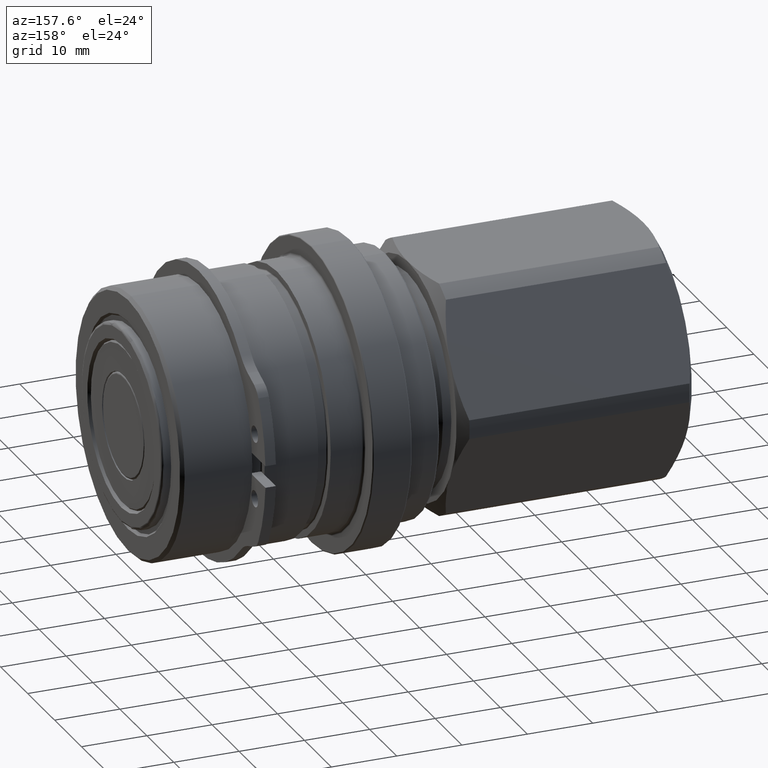
[diagram: clean part render]
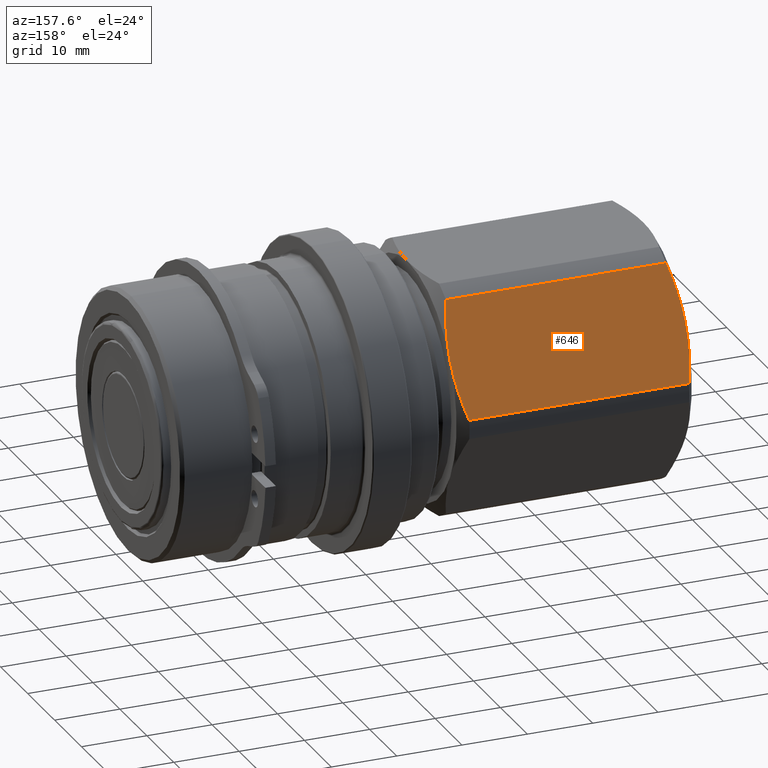
[diagram: same view with one face highlighted and labeled with its STEP entity id]
A machine part, auxiliary view. The second image highlights one B-rep face of the part: STEP entity #646.
In plain terms, the highlighted planar face has unit normal (0, 0.866, 0.5).
Its self-contained STEP definition (entity closure, byte-faithful):
#178 = CARTESIAN_POINT ( 'NONE',  ( -26.59999999999999800, 20.78460969082652100, 1.291650828109181700E-014 ) ) ;
#252 = DIRECTION ( 'NONE',  ( 0.0000000000000000000, 0.8660254037844388200, 0.4999999999999997800 ) ) ;
#273 = DIRECTION ( 'NONE',  ( -0.0000000000000000000, -0.4999999999999997800, 0.8660254037844388200 ) ) ;
#295 = PLANE ( 'NONE',  #1906 ) ;
#589 = EDGE_LOOP ( 'NONE', ( #2584, #2561, #2621, #2573, #2559, #2619 ) ) ;
#646 = ADVANCED_FACE ( 'NONE', ( #3223 ), #295, .T. ) ;
#755 = VERTEX_POINT ( 'NONE', #4355 ) ;
#818 = VERTEX_POINT ( 'NONE', #4028 ) ;
#830 = VERTEX_POINT ( 'NONE', #3957 ) ;
#890 = VERTEX_POINT ( 'NONE', #4327 ) ;
#892 = VERTEX_POINT ( 'NONE', #4323 ) ;
#916 = VERTEX_POINT ( 'NONE', #3974 ) ;
#1438 = CARTESIAN_POINT ( 'NONE',  ( 9.400000000000003900, 15.58845726811989400, 9.000000000000003600 ) ) ;
#1466 = CARTESIAN_POINT ( 'NONE',  ( 9.400000000000003900, 14.85226974635560300, 10.27511419159397100 ) ) ;
#1552 = CARTESIAN_POINT ( 'NONE',  ( 8.606667460683764800, 11.94752373592943000, 15.30628186473510200 ) ) ;
#1554 = CARTESIAN_POINT ( 'NONE',  ( 8.245299461620765800, 11.22955832457921900, 16.54983443527076000 ) ) ;
#1593 = CARTESIAN_POINT ( 'NONE',  ( 9.294402543404460800, 14.12140701405390400, 11.54100557729911900 ) ) ;
#1655 = CARTESIAN_POINT ( 'NONE',  ( 8.897343043493407300, 12.66905383761676700, 14.05655506942229800 ) ) ;
#1906 = AXIS2_PLACEMENT_3D ( 'NONE', #178, #252, #273 ) ;
#1983 = EDGE_CURVE ( 'NONE', #890, #892, #2162, .T. ) ;
#2150 = B_SPLINE_CURVE_WITH_KNOTS ( 'NONE', 3,
 ( #3775, #3867, #3813, #3657, #3641, #3706 ),
 .UNSPECIFIED., .F., .F.,
 ( 4, 2, 4 ),
 ( 8.107476462912492800E-007, 0.004395642794639905900, 0.008790474841633519300 ),
 .UNSPECIFIED. ) ;
#2162 = B_SPLINE_CURVE_WITH_KNOTS ( 'NONE', 3,
 ( #1554, #1552, #1655, #1593, #1466, #1438 ),
 .UNSPECIFIED., .F., .F.,
 ( 4, 2, 4 ),
 ( 8.107476462932332400E-007, 0.004395642794639911100, 0.008790474841633528000 ),
 .UNSPECIFIED. ) ;
#2164 = B_SPLINE_CURVE_WITH_KNOTS ( 'NONE', 3,
 ( #3848, #3819, #3921, #3892, #3674, #3880, #3824 ),
 .UNSPECIFIED., .F., .F.,
 ( 4, 2, 1, 4 ),
 ( 0.008790474841633519300, 0.01097219168948347000, 0.01315390853733342100, 0.01751734223303332000 ),
 .UNSPECIFIED. ) ;
#2170 = B_SPLINE_CURVE_WITH_KNOTS ( 'NONE', 3,
 ( #3595, #3592, #3593, #3613, #3571, #3569, #3589 ),
 .UNSPECIFIED., .F., .F.,
 ( 4, 2, 1, 4 ),
 ( 0.008790474841633528000, 0.01097219168948347800, 0.01315390853733343000, 0.01751734223303333400 ),
 .UNSPECIFIED. ) ;
#2185 = LINE ( 'NONE', #3832, #2236 ) ;
#2223 = LINE ( 'NONE', #3786, #2242 ) ;
#2236 = VECTOR ( 'NONE', #3888, 1000.000000000000000 ) ;
#2242 = VECTOR ( 'NONE', #3884, 1000.000000000000000 ) ;
#2559 = ORIENTED_EDGE ( 'NONE', *, *, #3526, .F. ) ;
#2561 = ORIENTED_EDGE ( 'NONE', *, *, #3514, .F. ) ;
#2573 = ORIENTED_EDGE ( 'NONE', *, *, #3559, .T. ) ;
#2584 = ORIENTED_EDGE ( 'NONE', *, *, #3536, .T. ) ;
#2619 = ORIENTED_EDGE ( 'NONE', *, *, #3481, .T. ) ;
#2621 = ORIENTED_EDGE ( 'NONE', *, *, #1983, .T. ) ;
#3223 = FACE_OUTER_BOUND ( 'NONE', #589, .T. ) ;
#3481 = EDGE_CURVE ( 'NONE', #818, #830, #2150, .T. ) ;
#3514 = EDGE_CURVE ( 'NONE', #890, #755, #2223, .T. ) ;
#3526 = EDGE_CURVE ( 'NONE', #818, #916, #2185, .T. ) ;
#3536 = EDGE_CURVE ( 'NONE', #830, #755, #2164, .T. ) ;
#3559 = EDGE_CURVE ( 'NONE', #892, #916, #2170, .T. ) ;
#3569 = CARTESIAN_POINT ( 'NONE',  ( 8.604841168193665600, 19.23301927555527500, 2.687433431786710300 ) ) ;
#3571 = CARTESIAN_POINT ( 'NONE',  ( 9.040950041784775200, 18.15308931815740200, 4.557926986615495200 ) ) ;
#3589 = CARTESIAN_POINT ( 'NONE',  ( 8.245299461620765800, 19.94735621166057300, 1.450165564729257700 ) ) ;
#3592 = CARTESIAN_POINT ( 'NONE',  ( 9.400000000000000400, 15.95392122720537900, 8.366997854528667800 ) ) ;
#3593 = CARTESIAN_POINT ( 'NONE',  ( 9.374143995972824300, 16.32107192748151200, 7.731074187615921500 ) ) ;
#3595 = CARTESIAN_POINT ( 'NONE',  ( 9.400000000000003900, 15.58845726811989400, 9.000000000000003600 ) ) ;
#3613 = CARTESIAN_POINT ( 'NONE',  ( 9.271117558659053500, 17.05634829531512900, 6.457538160923394200 ) ) ;
#3641 = CARTESIAN_POINT ( 'NONE',  ( -26.59999999999999400, 16.32464478988418200, 7.724885808406039400 ) ) ;
#3657 = CARTESIAN_POINT ( 'NONE',  ( -26.49440254340445800, 17.05550752218587700, 6.458994422700890900 ) ) ;
#3674 = CARTESIAN_POINT ( 'NONE',  ( -26.24095004178476400, 13.02382521808237000, 13.44207301338451400 ) ) ;
#3706 = CARTESIAN_POINT ( 'NONE',  ( -26.59999999999999800, 15.58845726811989400, 9.000000000000007100 ) ) ;
#3775 = CARTESIAN_POINT ( 'NONE',  ( -25.44529946162076000, 19.94735621166056200, 1.450165564729257100 ) ) ;
#3786 = CARTESIAN_POINT ( 'NONE',  ( 9.400000000000003900, 11.22955832457922500, 16.54983443527075300 ) ) ;
#3813 = CARTESIAN_POINT ( 'NONE',  ( -26.09734304349341400, 18.50786069862301600, 3.943444930577717100 ) ) ;
#3819 = CARTESIAN_POINT ( 'NONE',  ( -26.60000000000000100, 15.22299330903440800, 9.633002145471342800 ) ) ;
#3824 = CARTESIAN_POINT ( 'NONE',  ( -25.44529946162076000, 11.22955832457922500, 16.54983443527075300 ) ) ;
#3832 = CARTESIAN_POINT ( 'NONE',  ( 9.400000000000003900, 19.94735621166056200, 1.450165564729257100 ) ) ;
#3848 = CARTESIAN_POINT ( 'NONE',  ( -26.59999999999999800, 15.58845726811989400, 9.000000000000007100 ) ) ;
#3867 = CARTESIAN_POINT ( 'NONE',  ( -25.80666746068376900, 19.22939080031036200, 2.693718135264908700 ) ) ;
#3880 = CARTESIAN_POINT ( 'NONE',  ( -25.80484116819366500, 11.94389526068451700, 15.31256656821330400 ) ) ;
#3884 = DIRECTION ( 'NONE',  ( -1.000000000000000000, -0.0000000000000000000, 0.0000000000000000000 ) ) ;
#3888 = DIRECTION ( 'NONE',  ( 1.000000000000000000, 0.0000000000000000000, -0.0000000000000000000 ) ) ;
#3892 = CARTESIAN_POINT ( 'NONE',  ( -26.47111755865904200, 14.12056624092466000, 11.54246183907661200 ) ) ;
#3921 = CARTESIAN_POINT ( 'NONE',  ( -26.57414399597282200, 14.85584260875827800, 10.26892581238408300 ) ) ;
#3957 = CARTESIAN_POINT ( 'NONE',  ( -26.59999999999999800, 15.58845726811989400, 9.000000000000007100 ) ) ;
#3974 = CARTESIAN_POINT ( 'NONE',  ( 8.245299461620765800, 19.94735621166057300, 1.450165564729257700 ) ) ;
#4028 = CARTESIAN_POINT ( 'NONE',  ( -25.44529946162076000, 19.94735621166056200, 1.450165564729257100 ) ) ;
#4323 = CARTESIAN_POINT ( 'NONE',  ( 9.400000000000003900, 15.58845726811989400, 9.000000000000003600 ) ) ;
#4327 = CARTESIAN_POINT ( 'NONE',  ( 8.245299461620765800, 11.22955832457921900, 16.54983443527076000 ) ) ;
#4355 = CARTESIAN_POINT ( 'NONE',  ( -25.44529946162076000, 11.22955832457922500, 16.54983443527075300 ) ) ;